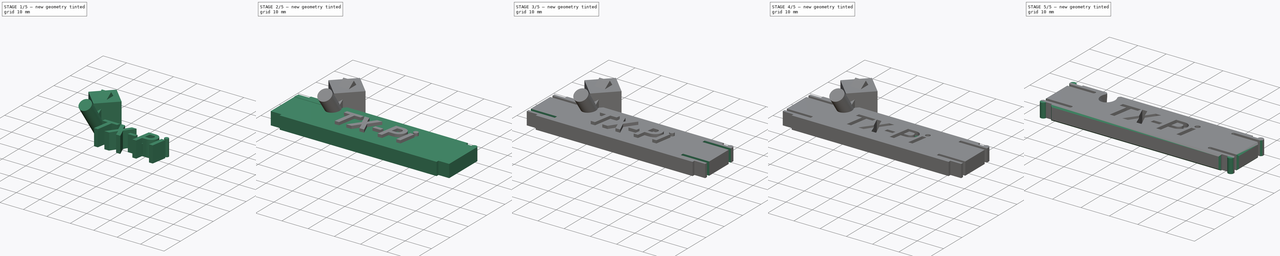
[diagram: build sequence overview — one tinted view per stage of 5, left to right]
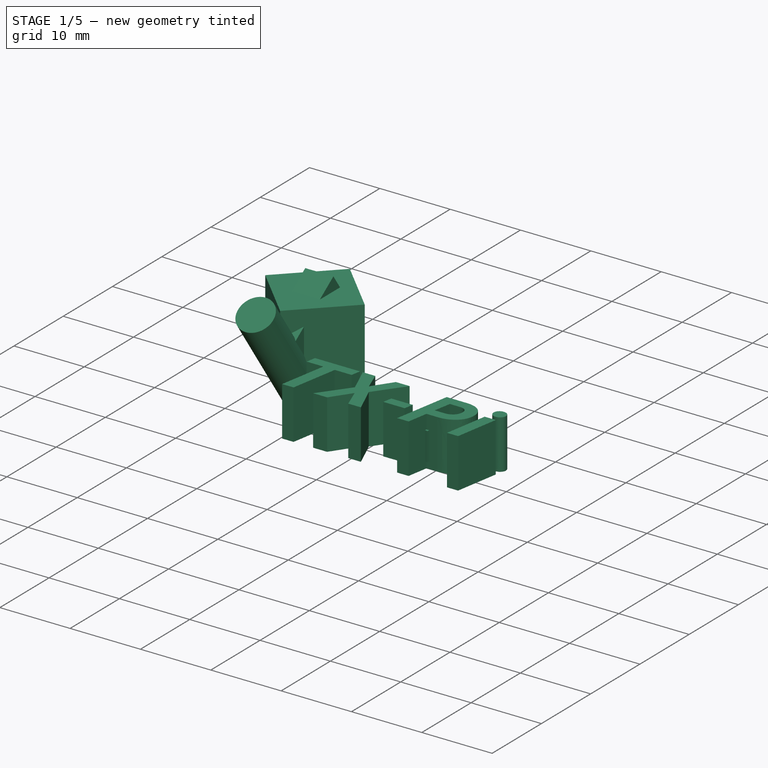
[diagram: stage 1 of 5 — iso view after this stage's code; geometry added in this stage tinted green]
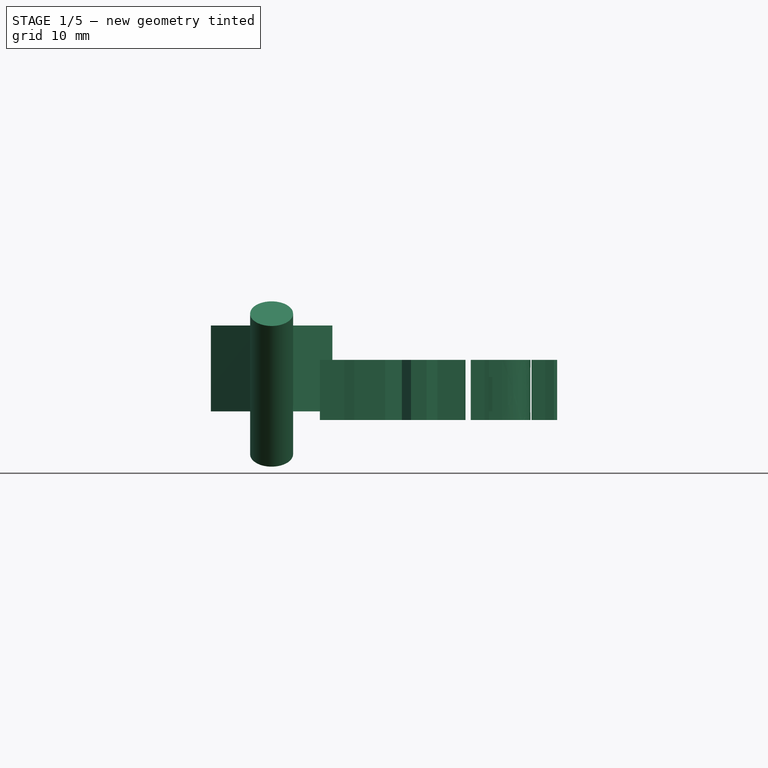
[diagram: stage 1 of 5 — front view after this stage's code; geometry added in this stage tinted green]
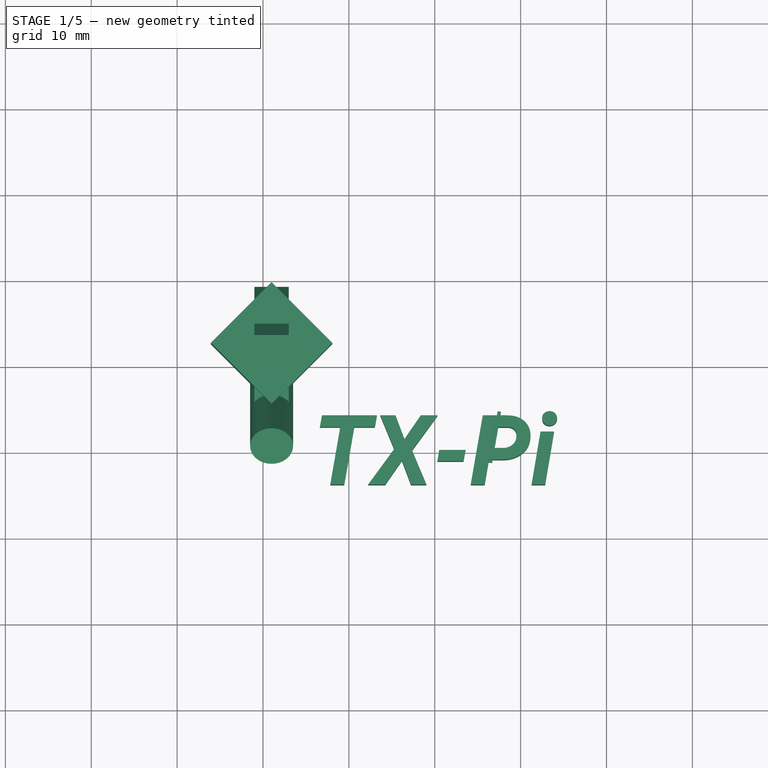
[diagram: stage 1 of 5 — top view after this stage's code; geometry added in this stage tinted green]
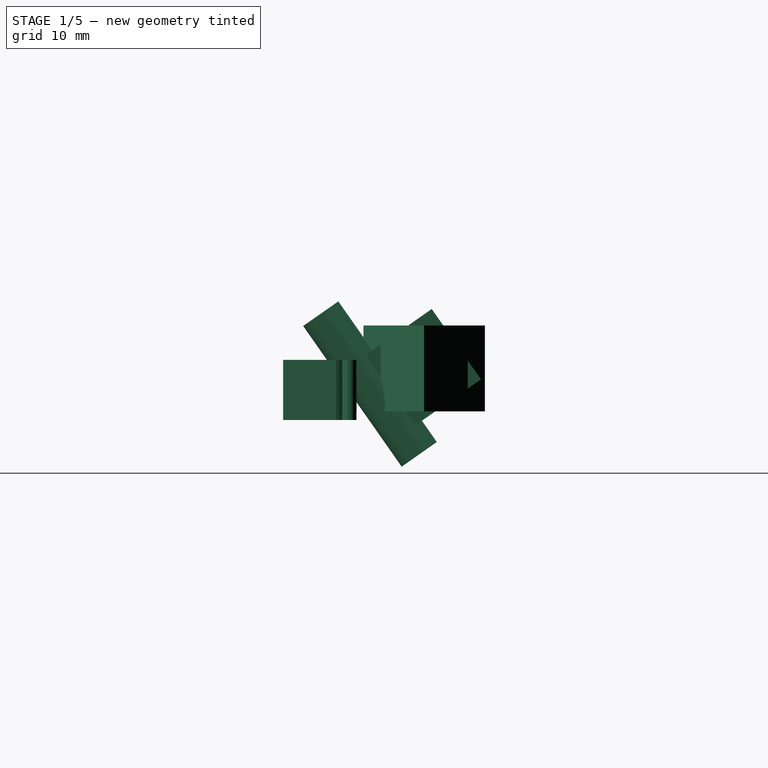
[diagram: stage 1 of 5 — right view after this stage's code; geometry added in this stage tinted green]
FCSTD DOCUMENT  (FreeCAD 0.17RUnknown)
Label: TX-Pi_stand_bracket_v2.1
License: All rights reserved
LicenseURL: http://en.wikipedia.org/wiki/All_rights_reserved
objects: Part::Box×9, Part::MultiFuse×6, Part::Cut×6, Part::Chamfer×4, Sketcher::SketchObject×3, PartDesign::Pad×3, Part::Part2DObjectPython×1, Part::Extrusion×1, Part::Cylinder×1, Part::Fillet×1
note: 38 computed .brp shape members not serialized (recipe doc carries the construction recipe); baked Part::Feature solids carry a one-line shape summary decoded from their .brp

FEATURE [Part::Part2DObjectPython] ShapeString  # Draft 2D object (typed FeaturePython)
  FontFile = <path>
  Placement = pos=(-9.1754,-3.35448,0) rot=(0,0,1;0rad)
  Size = 10
  String = TX-Pi
  Tracking = 0
FEATURE [Part::Extrusion] Extrude
  Base = -> ShapeString
  Dir = (0,0,7)
  DirMode = 0
  FaceMakerClass = Part::FaceMakerExtrusion
  LengthFwd = 0
  LengthRev = 0
  Placement = pos=(-5,-0.5,-1) rot=(0,0,1;0rad)
  Solid = true
  Symmetric = false
FEATURE [Part::Box] Box004  label="Würfel004"
  AttacherType = Attacher::AttachEngine3D
  Height = 4
  Length = 0.4
  Placement = pos=(6.28,-1.2,0) rot=(0,0,-1;0.174533rad)
  Width = 6
FEATURE [Part::Box] Box007  label="Würfel007"
  AttacherType = Attacher::AttachEngine3D
  Height = 10
  Length = 4
  Placement = pos=(-21,11,-2) rot=(1,0,0;0.610865rad)
  Width = 10
FEATURE [Part::Cylinder] Cylinder  label="Zylinder"
  Angle = 360
  AttacherType = Attacher::AttachEngine3D
  Height = 20
  Placement = pos=(-19,12,-5) rot=(1,0,0;0.610865rad)
  Radius = 2.5
FEATURE [Part::Box] Box008  label="Würfel008"
  AttacherType = Attacher::AttachEngine3D
  Height = 10
  Length = 10
  Placement = pos=(-19,5.5,0) rot=(0,0,1;0.785398rad)
  Width = 10
FEATURE [Part::MultiFuse] Fusion005
  Shapes = -> [Box008,Cylinder,Box007]
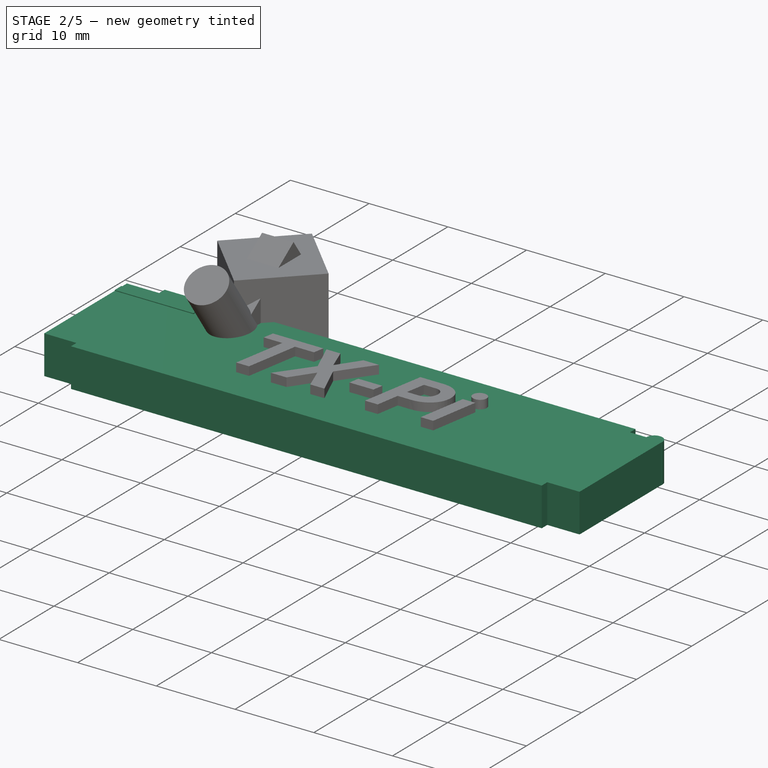
[diagram: stage 2 of 5 — iso view after this stage's code; geometry added in this stage tinted green]
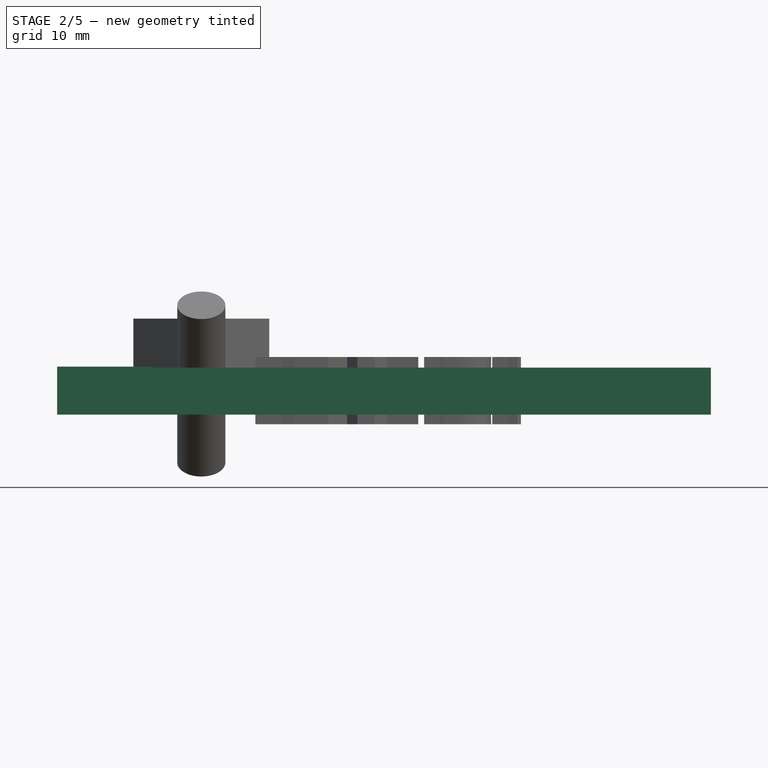
[diagram: stage 2 of 5 — front view after this stage's code; geometry added in this stage tinted green]
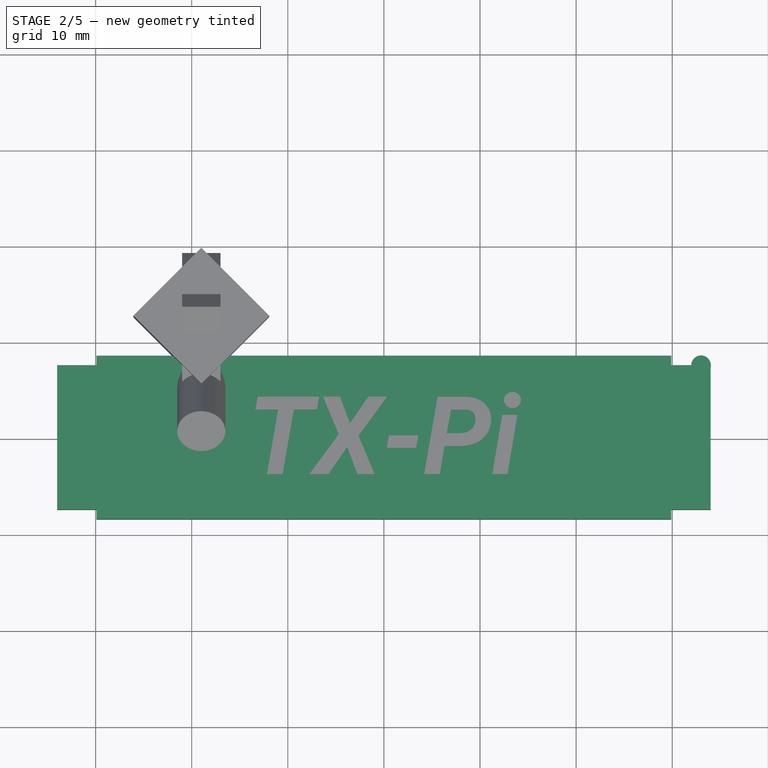
[diagram: stage 2 of 5 — top view after this stage's code; geometry added in this stage tinted green]
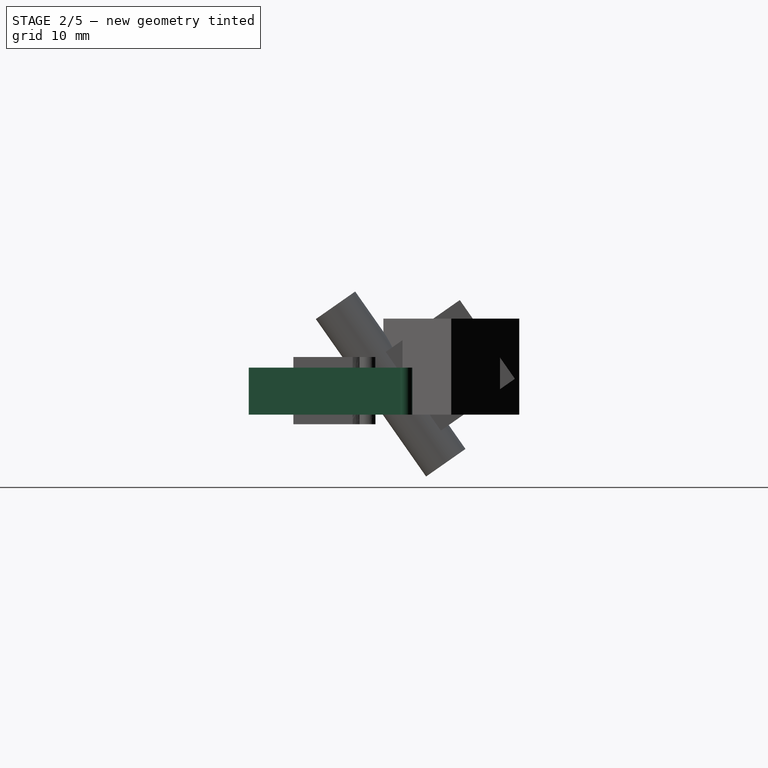
[diagram: stage 2 of 5 — right view after this stage's code; geometry added in this stage tinted green]
FEATURE [Sketcher::SketchObject] Sketch001
  MapMode = 5
  sketch-geometry (4):
    g0: Circle CenterX=-33 CenterY=7.5 CenterZ=0 NormalX=0 NormalY=0 NormalZ=1 AngleXU=0 Radius=1
    g1: Circle CenterX=-33 CenterY=-7.5 CenterZ=0 NormalX=0 NormalY=0 NormalZ=1 AngleXU=0 Radius=1
    g2: Circle CenterX=33.0001 CenterY=7.5 CenterZ=0 NormalX=0 NormalY=0 NormalZ=1 AngleXU=0 Radius=1.01887
    g3: Circle CenterX=33.0196 CenterY=-7.5 CenterZ=0 NormalX=0 NormalY=0 NormalZ=1 AngleXU=0 Radius=1.0181
FEATURE [Sketcher::SketchObject] Sketch002
  MapMode = 5
  sketch-geometry (4):
    g0: LineSegment StartX=-29.9 StartY=8.5 StartZ=0 EndX=29.9 EndY=8.5 EndZ=0
    g1: LineSegment StartX=29.9 StartY=8.5 StartZ=0 EndX=29.9 EndY=-8.5 EndZ=0
    g2: LineSegment StartX=29.9 StartY=-8.5 StartZ=0 EndX=-29.9 EndY=-8.5 EndZ=0
    g3: LineSegment StartX=-29.9 StartY=-8.5 StartZ=0 EndX=-29.9 EndY=8.5 EndZ=0
  constraints (9):
    c: Coincident(g0,g1)
    c: Coincident(g1,g2)
    c: Coincident(g2,g3)
    c: Horizontal(g0)
    c: Horizontal(g2)
    c: Vertical(g1)
    c: Vertical(g3)
    c: Symmetric(g0,g2,g-1)
    c: Symmetric(g0,g0,g-2)
FEATURE [Sketcher::SketchObject] Sketch003
  MapMode = 5
  sketch-geometry (4):
    g0: LineSegment StartX=-34 StartY=7.5 StartZ=0 EndX=34 EndY=7.5 EndZ=0
    g1: LineSegment StartX=34 StartY=7.5 StartZ=0 EndX=34 EndY=-7.5 EndZ=0
    g2: LineSegment StartX=34 StartY=-7.5 StartZ=0 EndX=-34 EndY=-7.5 EndZ=0
    g3: LineSegment StartX=-34 StartY=-7.5 StartZ=0 EndX=-34 EndY=7.5 EndZ=0
  constraints (10):
    c: Coincident(g0,g1)
    c: Coincident(g1,g2)
    c: Coincident(g2,g3)
    c: Coincident(g3,g0)
    c: Horizontal(g0)
    c: Horizontal(g2)
    c: Vertical(g1)
    c: Vertical(g3)
    c: Symmetric(g0,g0,g-2)
    c: Symmetric(g0,g2,g-1)
FEATURE [PartDesign::Pad] Pad
  Length = 4.9
  Length2 = 100
  Profile = -> Sketch001
  Type = 0
FEATURE [PartDesign::Pad] Pad001
  Length = 4.9
  Length2 = 100
  Profile = -> Sketch003
  Type = 0
FEATURE [PartDesign::Pad] Pad002
  Length = 4.9
  Length2 = 100
  Profile = -> Sketch002
  Type = 0
FEATURE [Part::MultiFuse] Fusion
  Shapes = -> [Pad,Pad001]
FEATURE [Part::MultiFuse] Fusion001
  Shapes = -> [Pad002,Fusion]
FEATURE [Part::Box] Box  label="Würfel"
  AttacherType = Attacher::AttachEngine3D
  Height = 5
  Length = 10
  Placement = pos=(-34,5.29,0) rot=(0,0,1;0rad)
  Width = 1.2
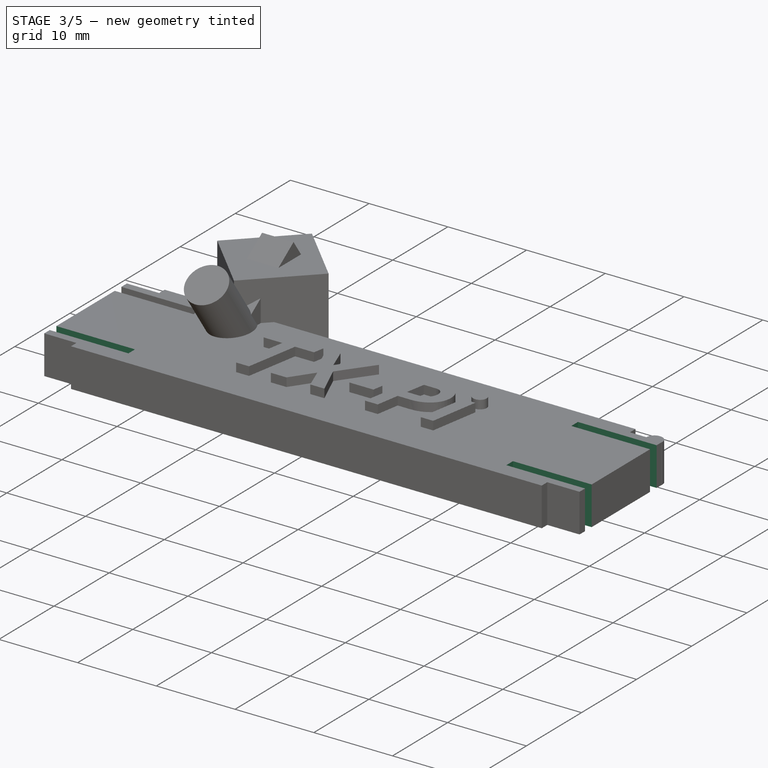
[diagram: stage 3 of 5 — iso view after this stage's code; geometry added in this stage tinted green]
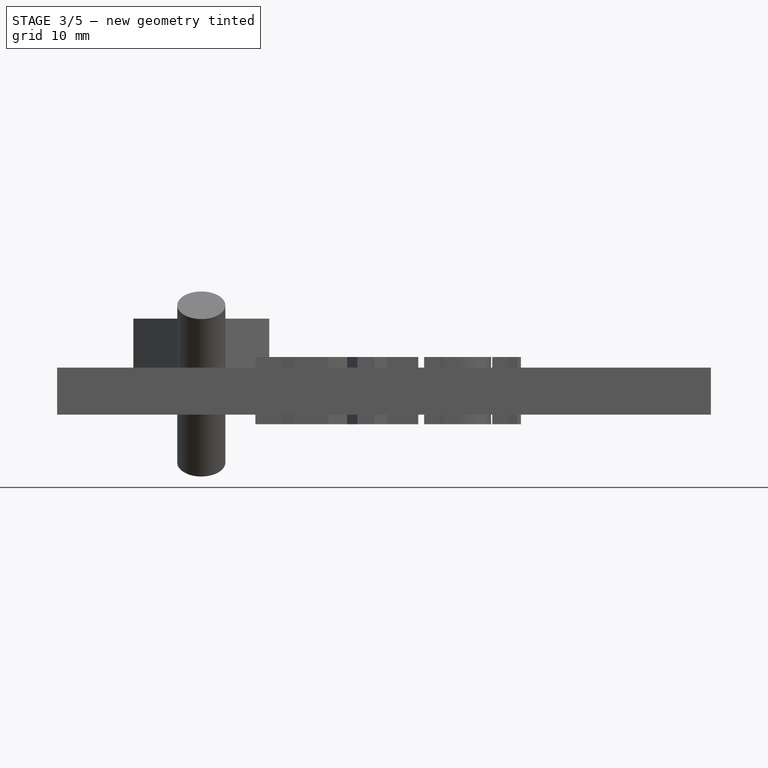
[diagram: stage 3 of 5 — front view after this stage's code; geometry added in this stage tinted green]
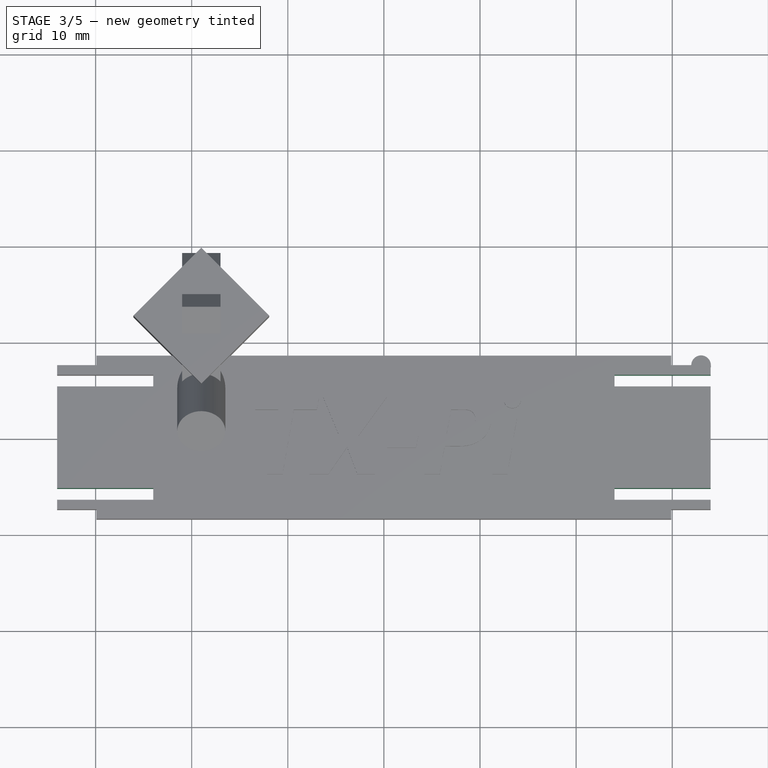
[diagram: stage 3 of 5 — top view after this stage's code; geometry added in this stage tinted green]
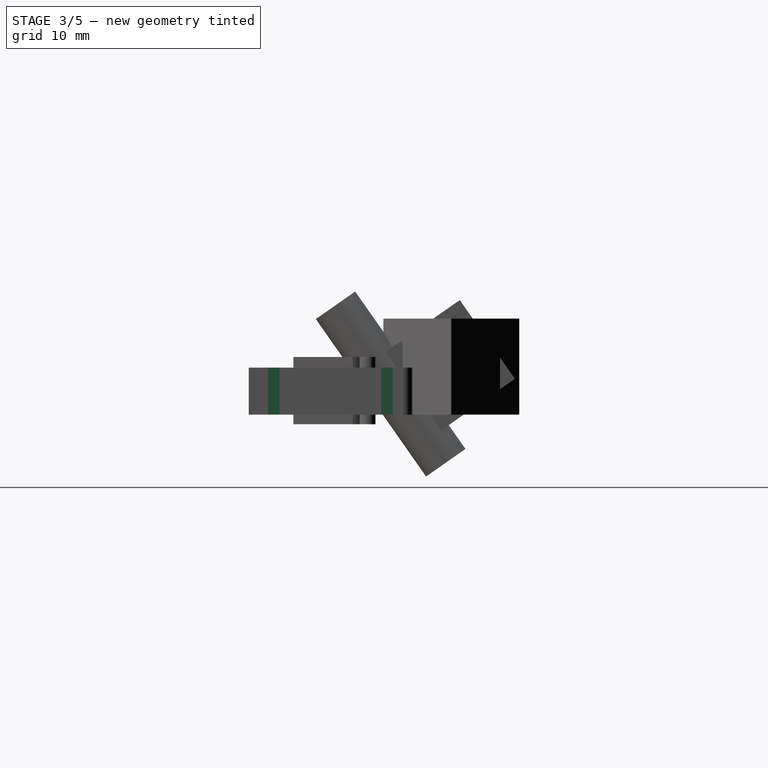
[diagram: stage 3 of 5 — right view after this stage's code; geometry added in this stage tinted green]
FEATURE [Part::Box] Box001  label="Würfel001"
  AttacherType = Attacher::AttachEngine3D
  Height = 5
  Length = 10
  Placement = pos=(-34,-6.5,0) rot=(0,0,1;0rad)
  Width = 1.2
FEATURE [Part::Box] Box002  label="Würfel002"
  AttacherType = Attacher::AttachEngine3D
  Height = 5
  Length = 10
  Placement = pos=(24,-6.5,0) rot=(0,0,1;0rad)
  Width = 1.2
FEATURE [Part::Box] Box003  label="Würfel003"
  AttacherType = Attacher::AttachEngine3D
  Height = 5
  Length = 10
  Placement = pos=(24,5.29,0) rot=(0,0,1;0rad)
  Width = 1.2
FEATURE [Part::Cut] Cut
  Base = -> Fusion001
  Tool = -> Box
FEATURE [Part::Cut] Cut001
  Base = -> Cut
  Tool = -> Box001
FEATURE [Part::Cut] Cut002
  Base = -> Cut001
  Tool = -> Box002
FEATURE [Part::Cut] Cut003
  Base = -> Cut002
  Tool = -> Box003
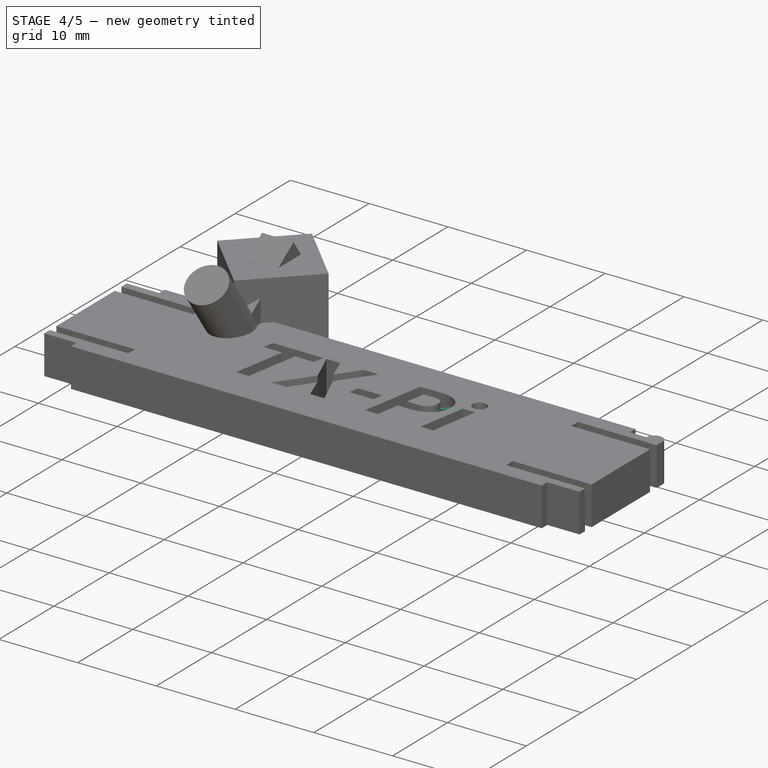
[diagram: stage 4 of 5 — iso view after this stage's code; geometry added in this stage tinted green]
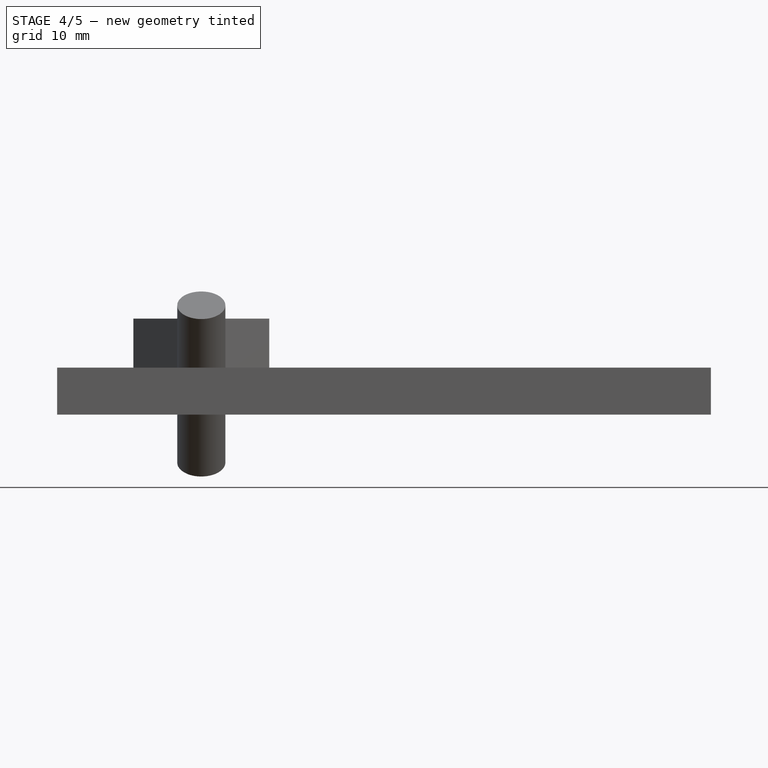
[diagram: stage 4 of 5 — front view after this stage's code; geometry added in this stage tinted green]
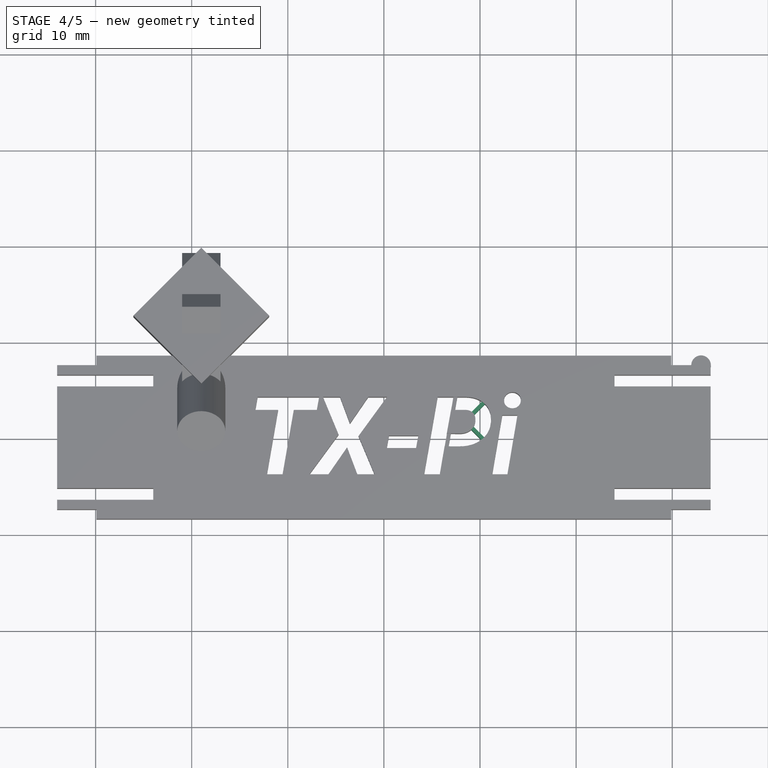
[diagram: stage 4 of 5 — top view after this stage's code; geometry added in this stage tinted green]
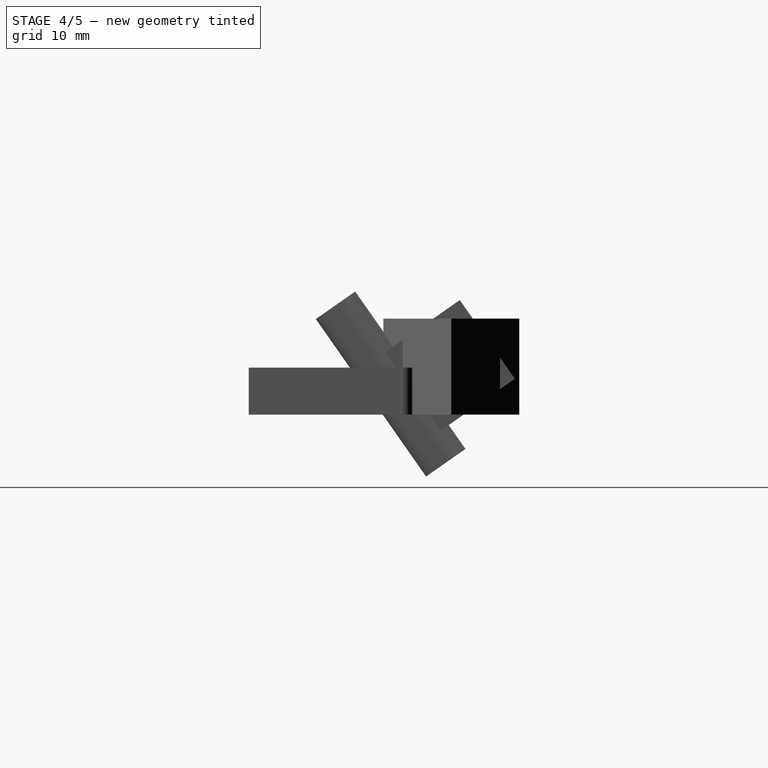
[diagram: stage 4 of 5 — right view after this stage's code; geometry added in this stage tinted green]
FEATURE [Part::Cut] Cut004
  Base = -> Cut003
  Tool = -> Extrude
FEATURE [Part::Box] Box005  label="Würfel005"
  AttacherType = Attacher::AttachEngine3D
  Height = 4
  Length = 0.4
  Placement = pos=(11.08,-1.2,0) rot=(0,0,1;0.785398rad)
  Width = 3
FEATURE [Part::Box] Box006  label="Würfel006"
  AttacherType = Attacher::AttachEngine3D
  Height = 4
  Length = 0.4
  Placement = pos=(8.28,1.8,0) rot=(0,0,-1;0.785398rad)
  Width = 3
FEATURE [Part::MultiFuse] Fusion002
  Shapes = -> [Cut004,Box004]
FEATURE [Part::MultiFuse] Fusion003
  Shapes = -> [Fusion002,Box005]
FEATURE [Part::MultiFuse] Fusion004
  Shapes = -> [Fusion003,Box006]
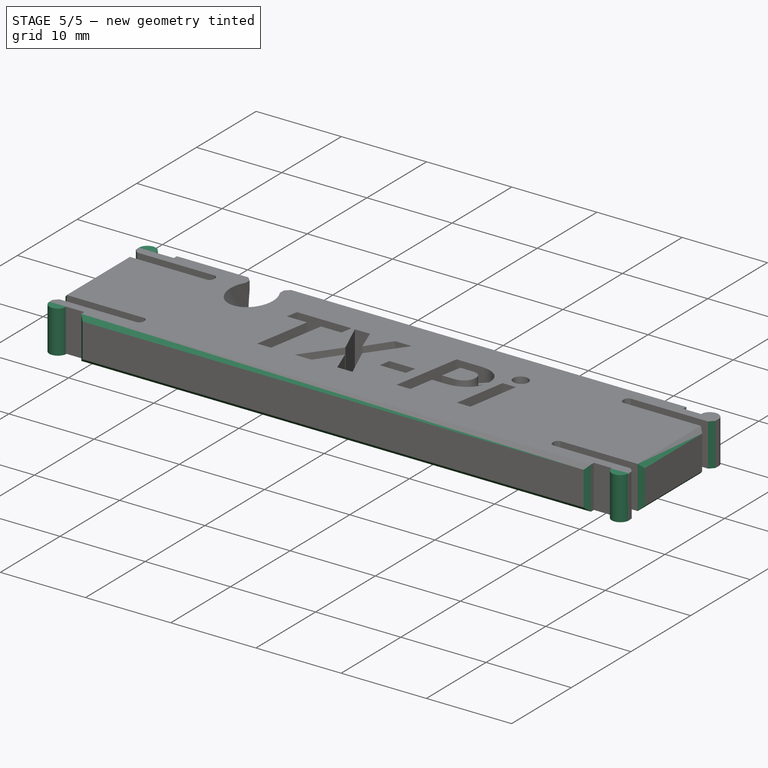
[diagram: stage 5 of 5 — iso view after this stage's code; geometry added in this stage tinted green]
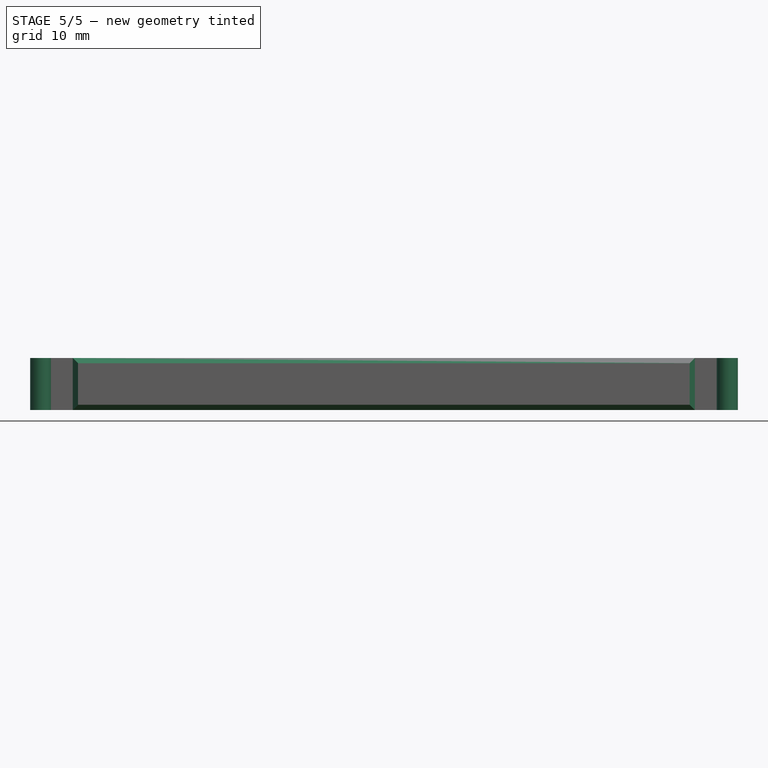
[diagram: stage 5 of 5 — front view after this stage's code; geometry added in this stage tinted green]
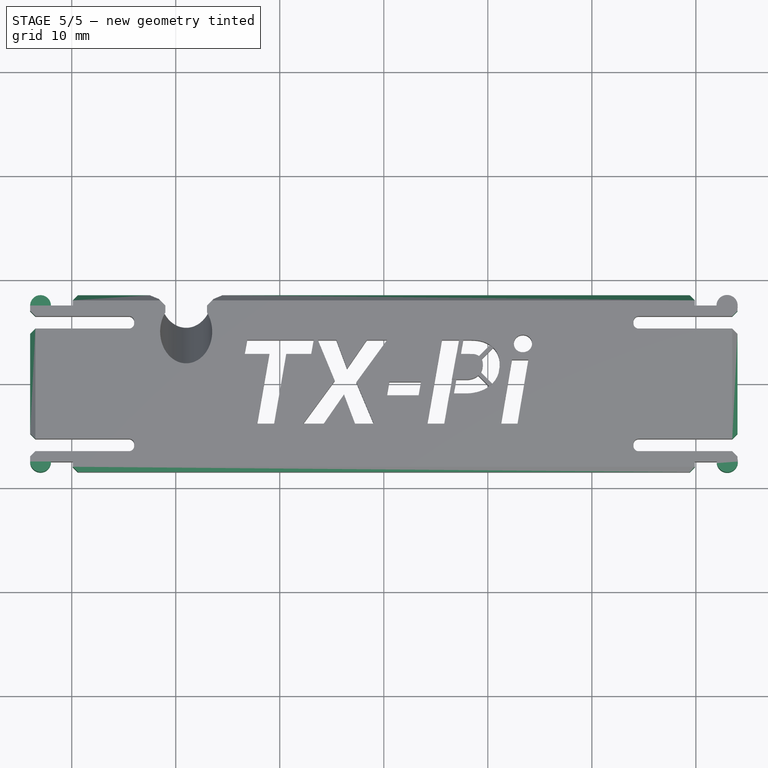
[diagram: stage 5 of 5 — top view after this stage's code; geometry added in this stage tinted green]
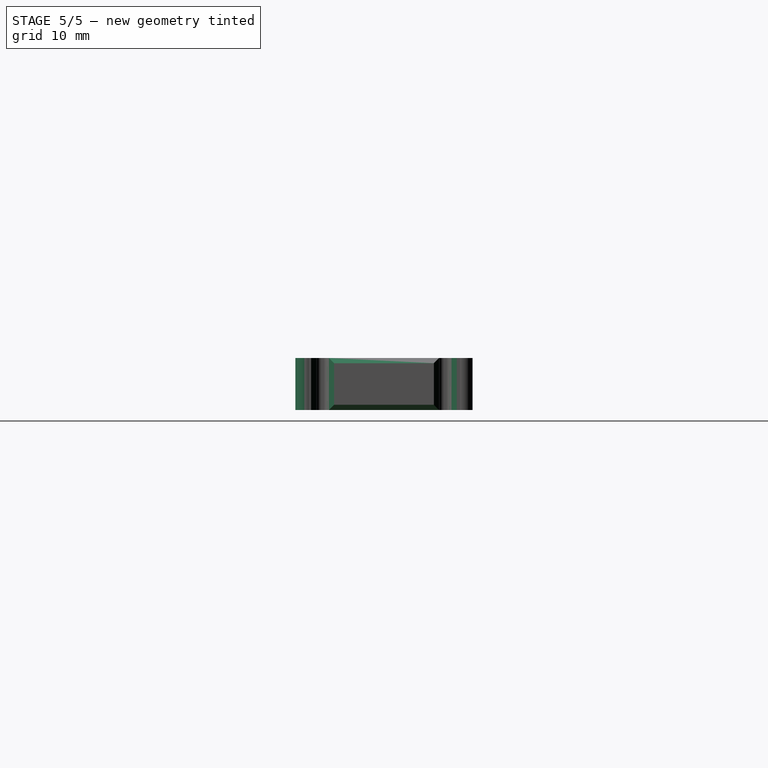
[diagram: stage 5 of 5 — right view after this stage's code; geometry added in this stage tinted green]
FEATURE [Part::Cut] Cut005
  Base = -> Fusion004
  Tool = -> Fusion005
FEATURE [Part::Fillet] Fillet
  Base = -> Cut005
  Edges = 8 edges r=0.5: [Edge174,Edge175,Edge183,Edge184,Edge198,Edge205,Edge211,Edge214]
FEATURE [Part::Chamfer] Chamfer
  Base = -> Fillet
  Edges = 12 edges r=0.5: [Edge93,Edge116,Edge121,Edge128,Edge136,Edge154,Edge158,Edge163,Edge169,Edge182,Edge327,Edge351]
FEATURE [Part::Chamfer] Chamfer001
  Base = -> Chamfer
  Edges = 4 edges r=0.5: [Edge237,Edge336,Edge382,Edge383]
FEATURE [Part::Chamfer] Chamfer002
  Base = -> Chamfer001
  Edges = 4 edges r=0.5: [Edge127,Edge344,Edge345,Edge346]
FEATURE [Part::Chamfer] Chamfer003
  Base = -> Chamfer002
  Edges = 4 edges r=0.5: [Edge120,Edge125,Edge334,Edge335]
note: 1 file-system path scrubbed to <path> (originals preserved in the JSON sidecar)
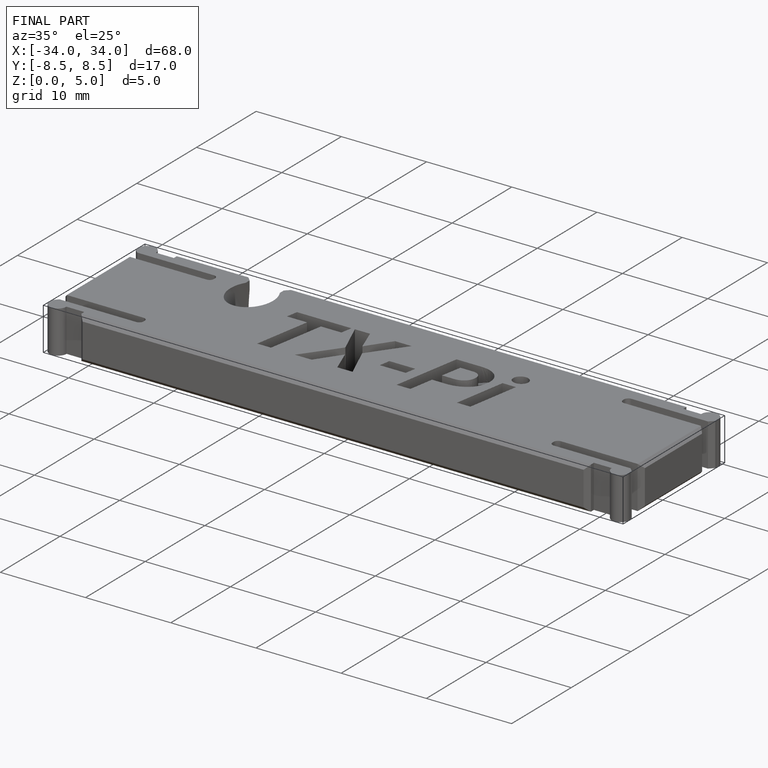
[diagram: finished part — iso view with bounding-box wireframe]
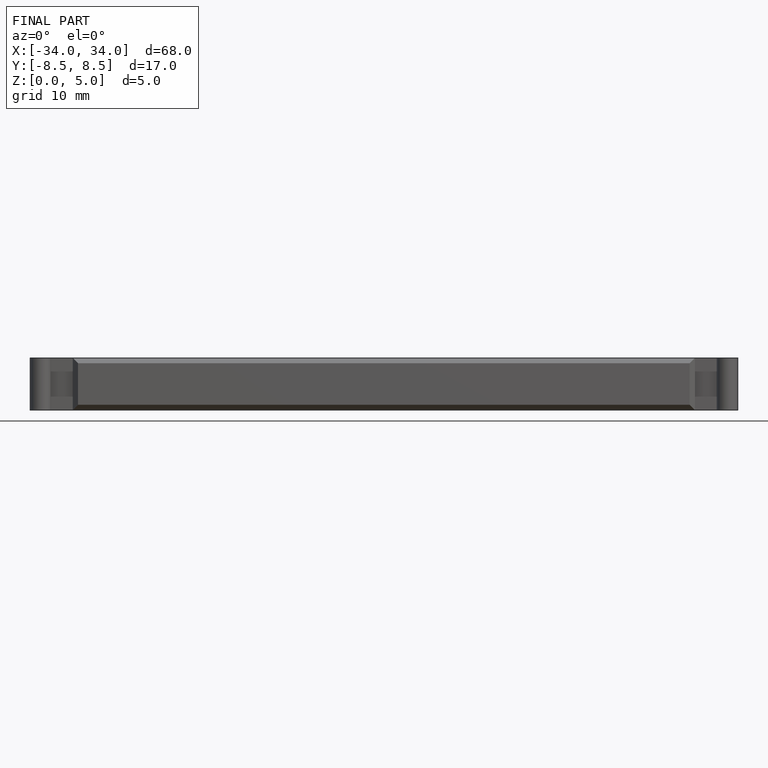
[diagram: finished part — front view with bounding-box wireframe]
